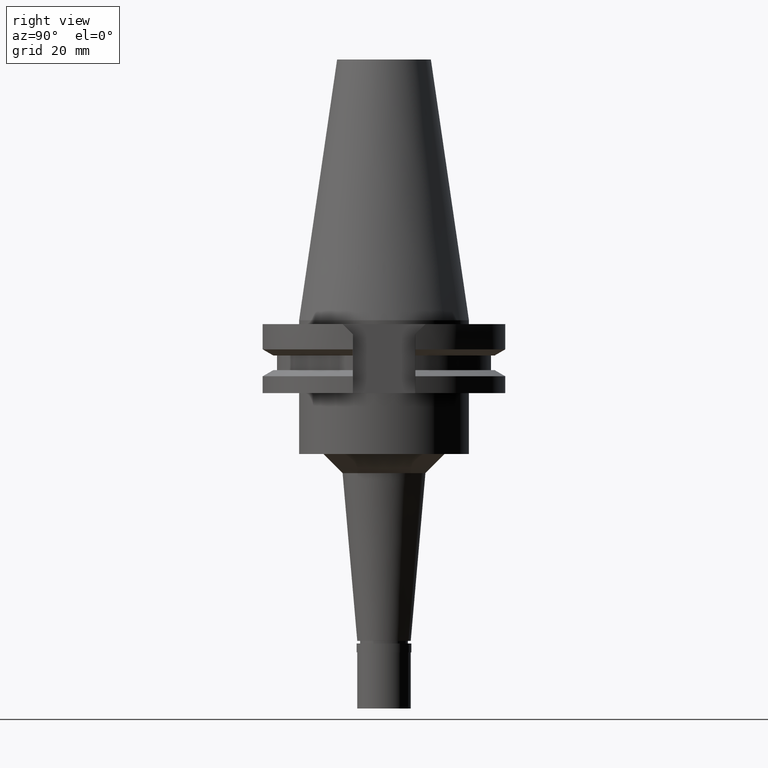
[diagram: clean part render]
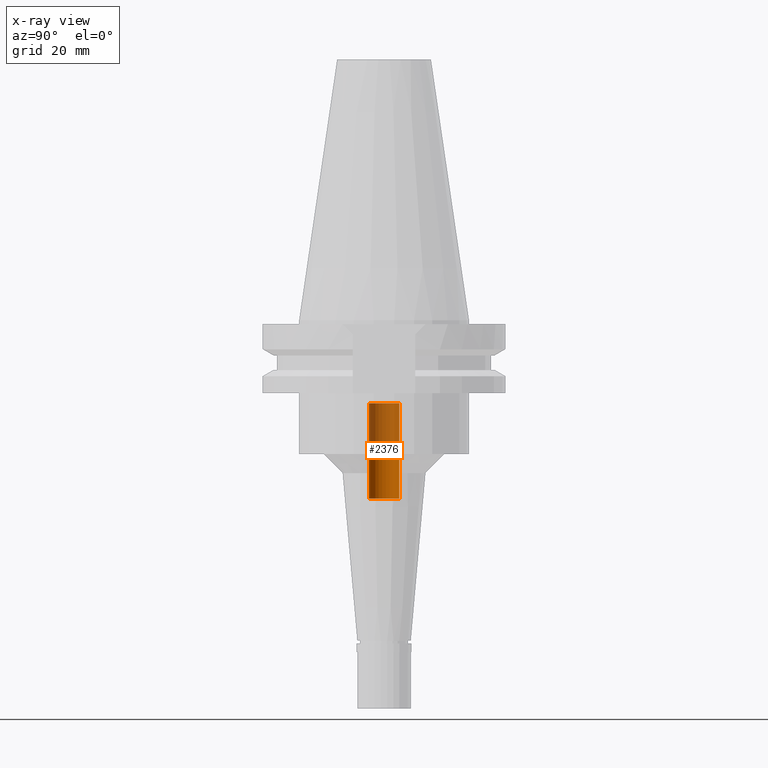
[diagram: x-ray — body ghosted, one internal face saturated and labeled with its STEP entity id]
A machine part, right view, then the same camera in x-ray: the body is ghosted and one INTERNAL B-rep face — a face not visible from any outside direction — is saturated and labeled: STEP entity #2376.
In plain terms, the highlighted cylindrical surface (edge-blend (fillet) strip) has radius 4 mm, axis along (0, 0, -1).
Its self-contained STEP definition (entity closure, byte-faithful):
#40 = EDGE_CURVE ( 'NONE', #2977, #2594, #1104, .T. ) ;
#123 = VERTEX_POINT ( 'NONE', #2282 ) ;
#131 = DIRECTION ( 'NONE',  ( 0.0000000000000000000, 0.0000000000000000000, -1.000000000000000000 ) ) ;
#335 = CARTESIAN_POINT ( 'NONE',  ( 0.0000000000000000000, -4.000000000000000000, -46.75000000000000000 ) ) ;
#368 = FACE_OUTER_BOUND ( 'NONE', #2310, .T. ) ;
#385 = DIRECTION ( 'NONE',  ( 0.0000000000000000000, 1.000000000000000000, 0.0000000000000000000 ) ) ;
#423 = LINE ( 'NONE', #618, #2937 ) ;
#618 = CARTESIAN_POINT ( 'NONE',  ( 0.0000000000000000000, -4.000000000000000000, -46.75000000000000000 ) ) ;
#720 = CIRCLE ( 'NONE', #1636, 4.000000000000000000 ) ;
#722 = CARTESIAN_POINT ( 'NONE',  ( 0.0000000000000000000, 2.162022075384999775E-14, -46.75000000000000000 ) ) ;
#814 = EDGE_CURVE ( 'NONE', #2793, #123, #423, .T. ) ;
#1092 = CARTESIAN_POINT ( 'NONE',  ( 0.0000000000000000000, 2.162022075384999775E-14, -21.75000000000000000 ) ) ;
#1104 = LINE ( 'NONE', #2553, #2203 ) ;
#1112 = DIRECTION ( 'NONE',  ( 0.0000000000000000000, -1.000000000000000000, 0.0000000000000000000 ) ) ;
#1124 = DIRECTION ( 'NONE',  ( 0.0000000000000000000, 0.0000000000000000000, 1.000000000000000000 ) ) ;
#1267 = AXIS2_PLACEMENT_3D ( 'NONE', #722, #2172, #1446 ) ;
#1315 = EDGE_CURVE ( 'NONE', #2793, #2977, #2291, .T. ) ;
#1446 = DIRECTION ( 'NONE',  ( 0.0000000000000000000, -1.000000000000000000, 0.0000000000000000000 ) ) ;
#1612 = ORIENTED_EDGE ( 'NONE', *, *, #814, .F. ) ;
#1634 = ORIENTED_EDGE ( 'NONE', *, *, #2328, .T. ) ;
#1636 = AXIS2_PLACEMENT_3D ( 'NONE', #1092, #2062, #385 ) ;
#2002 = CARTESIAN_POINT ( 'NONE',  ( 0.0000000000000000000, 4.000000000000000000, -21.75000000000000000 ) ) ;
#2062 = DIRECTION ( 'NONE',  ( 0.0000000000000000000, 0.0000000000000000000, 1.000000000000000000 ) ) ;
#2125 = ORIENTED_EDGE ( 'NONE', *, *, #40, .T. ) ;
#2172 = DIRECTION ( 'NONE',  ( 0.0000000000000000000, 0.0000000000000000000, -1.000000000000000000 ) ) ;
#2203 = VECTOR ( 'NONE', #1124, 1000.000000000000000 ) ;
#2282 = CARTESIAN_POINT ( 'NONE',  ( 0.0000000000000000000, -4.000000000000000000, -21.75000000000000000 ) ) ;
#2291 = CIRCLE ( 'NONE', #1267, 4.000000000000000000 ) ;
#2310 = EDGE_LOOP ( 'NONE', ( #1634, #1612, #2630, #2125 ) ) ;
#2328 = EDGE_CURVE ( 'NONE', #2594, #123, #720, .T. ) ;
#2342 = CYLINDRICAL_SURFACE ( 'NONE', #2523, 4.000000000000000000 ) ;
#2376 = ADVANCED_FACE ( 'NONE', ( #368 ), #2342, .F. ) ;
#2523 = AXIS2_PLACEMENT_3D ( 'NONE', #2858, #131, #1112 ) ;
#2553 = CARTESIAN_POINT ( 'NONE',  ( 0.0000000000000000000, 4.000000000000000000, -46.75000000000000000 ) ) ;
#2594 = VERTEX_POINT ( 'NONE', #2002 ) ;
#2630 = ORIENTED_EDGE ( 'NONE', *, *, #1315, .T. ) ;
#2651 = CARTESIAN_POINT ( 'NONE',  ( 0.0000000000000000000, 4.000000000000000000, -46.75000000000000000 ) ) ;
#2793 = VERTEX_POINT ( 'NONE', #335 ) ;
#2812 = DIRECTION ( 'NONE',  ( 0.0000000000000000000, 0.0000000000000000000, 1.000000000000000000 ) ) ;
#2858 = CARTESIAN_POINT ( 'NONE',  ( 0.0000000000000000000, 2.162022075384999775E-14, 76.54250000000000398 ) ) ;
#2937 = VECTOR ( 'NONE', #2812, 1000.000000000000000 ) ;
#2977 = VERTEX_POINT ( 'NONE', #2651 ) ;